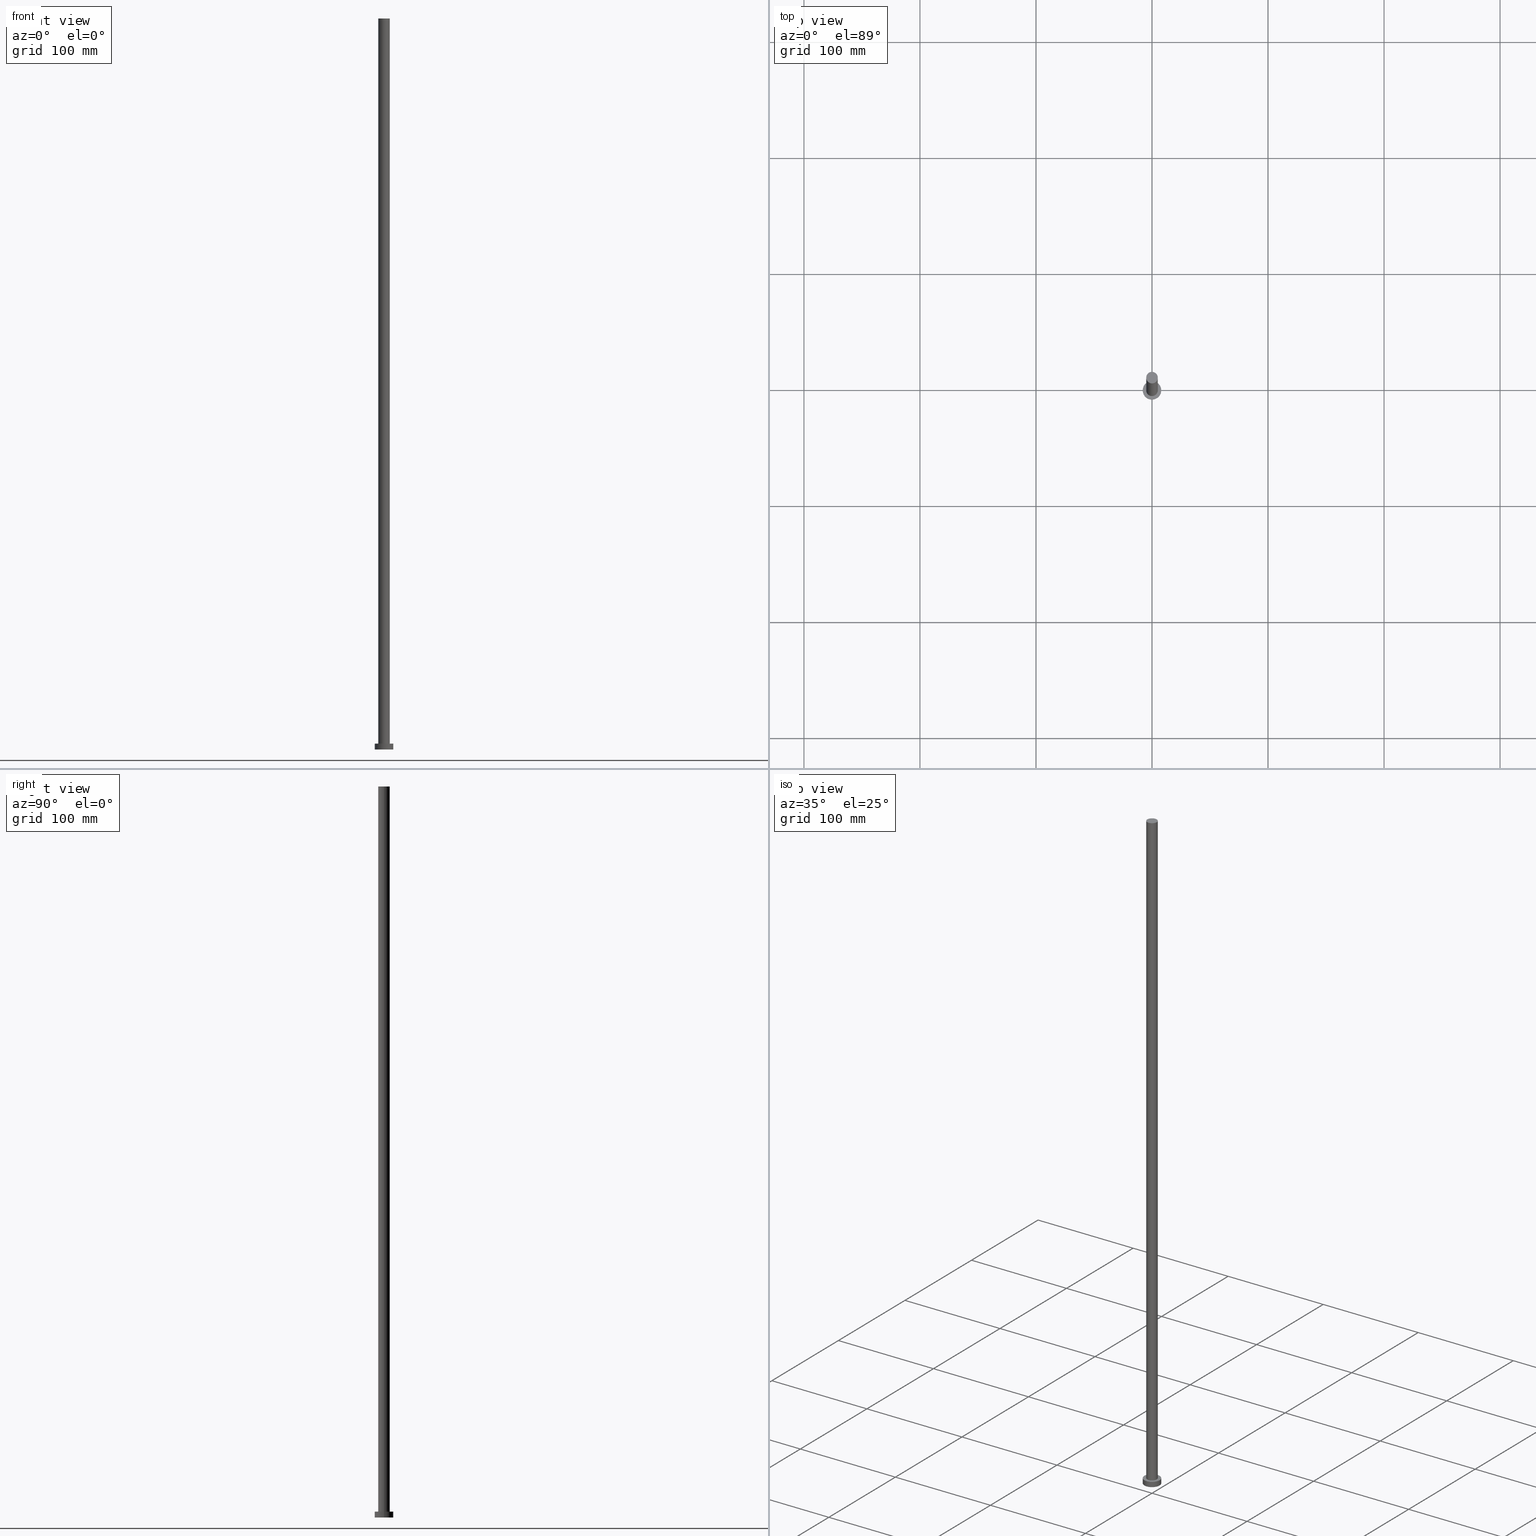
[diagram: canonical four-view strip — front | top / right | iso, engineering-drawing reading convention]
A machine part, canonical four-view strip (front | top / right | iso — engineering-drawing reading convention). The complete STEP part file that produces these views, byte-faithful:
ISO-10303-21;
HEADER;
FILE_DESCRIPTION (( 'STEP AP203' ),
    '1' );
FILE_NAME ('5aad.STEP',
    '2023-02-13T09:58:31',
    ( '' ),
    ( '' ),
    'SwSTEP 2.0',
    'SolidWorks 2019',
    '' );
FILE_SCHEMA (( 'CONFIG_CONTROL_DESIGN' ));
ENDSEC;

DATA;
#1 = DIRECTION ( 'NONE',  ( 0.000000000000000000, 0.000000000000000000, 1.000000000000000000 ) ) ;
#2 = CARTESIAN_POINT ( 'NONE',  ( 0.000000000000000000, 0.000000000000000000, 5.000000000000000000 ) ) ;
#3 = CARTESIAN_POINT ( 'NONE',  ( 8.000000000000000000, 9.797174393178825657E-16, 5.000000000000000000 ) ) ;
#4 = DATE_AND_TIME ( #189, #205 ) ;
#5 = LINE ( 'NONE', #28, #215 ) ;
#6 = APPROVAL_STATUS ( 'not_yet_approved' ) ;
#7 =( GEOMETRIC_REPRESENTATION_CONTEXT ( 3 ) GLOBAL_UNCERTAINTY_ASSIGNED_CONTEXT ( ( #76 ) ) GLOBAL_UNIT_ASSIGNED_CONTEXT ( ( #175, #83, #44 ) ) REPRESENTATION_CONTEXT ( 'NONE', 'WORKASPACE' ) );
#8 = DIRECTION ( 'NONE',  ( 1.000000000000000000, 0.000000000000000000, 0.000000000000000000 ) ) ;
#9 = DATE_AND_TIME ( #10, #72 ) ;
#10 = CALENDAR_DATE ( 2023, 13, 2 ) ;
#11 = CARTESIAN_POINT ( 'NONE',  ( 0.000000000000000000, 0.000000000000000000, 5.000000000000000000 ) ) ;
#12 = CARTESIAN_POINT ( 'NONE',  ( 0.000000000000000000, 0.000000000000000000, 5.000000000000000000 ) ) ;
#13 = CARTESIAN_POINT ( 'NONE',  ( 5.000000000000000888, 6.123233995736767268E-16, 630.0000000000000000 ) ) ;
#14 = EDGE_LOOP ( 'NONE', ( #141, #65 ) ) ;
#15 = EDGE_CURVE ( 'NONE', #218, #158, #99, .T. ) ;
#16 = LOCAL_TIME ( 10, 58, 31.00000000000000000, #43 ) ;
#17 = EDGE_LOOP ( 'NONE', ( #115, #117, #137, #52 ) ) ;
#18 = ORIENTED_EDGE ( 'NONE', *, *, #168, .F. ) ;
#19 = APPROVAL_DATE_TIME ( #145, #170 ) ;
#20 = SHAPE_DEFINITION_REPRESENTATION ( #190, #213 ) ;
#21 = PRODUCT_DEFINITION ( 'NEZN�M�', '', #249, #94 ) ;
#22 = CYLINDRICAL_SURFACE ( 'NONE', #47, 5.000000000000000888 ) ;
#23 = CLOSED_SHELL ( 'NONE', ( #30, #248, #149, #226, #93, #181, #239 ) ) ;
#24 = PERSON_AND_ORGANIZATION ( #131, #167 ) ;
#25 = CARTESIAN_POINT ( 'NONE',  ( 8.000000000000000000, 9.797174393178825657E-16, 0.000000000000000000 ) ) ;
#26 = DIRECTION ( 'NONE',  ( -0.000000000000000000, -0.000000000000000000, -1.000000000000000000 ) ) ;
#27 = APPROVAL_STATUS ( 'not_yet_approved' ) ;
#28 = CARTESIAN_POINT ( 'NONE',  ( -5.000000000000000888, 0.000000000000000000, 630.0000000000000000 ) ) ;
#29 = FACE_OUTER_BOUND ( 'NONE', #227, .T. ) ;
#30 = ADVANCED_FACE ( 'NONE', ( #122 ), #22, .T. ) ;
#31 = CARTESIAN_POINT ( 'NONE',  ( 0.000000000000000000, 0.000000000000000000, 0.000000000000000000 ) ) ;
#32 = EDGE_CURVE ( 'NONE', #200, #218, #194, .T. ) ;
#33 = CARTESIAN_POINT ( 'NONE',  ( -8.000000000000000000, 0.000000000000000000, 5.000000000000000000 ) ) ;
#34 = CC_DESIGN_SECURITY_CLASSIFICATION ( #139, ( #249 ) ) ;
#35 = ORIENTED_EDGE ( 'NONE', *, *, #69, .T. ) ;
#36 = EDGE_CURVE ( 'NONE', #200, #134, #183, .T. ) ;
#37 = MANIFOLD_SOLID_BREP ( 'P�idat vysunut�m3', #23 ) ;
#38 = CIRCLE ( 'NONE', #188, 5.000000000000000888 ) ;
#39 = AXIS2_PLACEMENT_3D ( 'NONE', #252, #71, #157 ) ;
#40 = PERSON_AND_ORGANIZATION_ROLE ( 'classification_officer' ) ;
#41 = DIRECTION ( 'NONE',  ( -1.000000000000000000, 0.000000000000000000, 0.000000000000000000 ) ) ;
#42 = DIRECTION ( 'NONE',  ( 0.000000000000000000, 0.000000000000000000, 1.000000000000000000 ) ) ;
#43 = COORDINATED_UNIVERSAL_TIME_OFFSET ( 1, 0, .AHEAD. ) ;
#44 =( NAMED_UNIT ( * ) SI_UNIT ( $, .STERADIAN. ) SOLID_ANGLE_UNIT ( ) );
#45 = DIRECTION ( 'NONE',  ( 0.000000000000000000, 0.000000000000000000, 1.000000000000000000 ) ) ;
#46 = ORIENTED_EDGE ( 'NONE', *, *, #186, .T. ) ;
#47 = AXIS2_PLACEMENT_3D ( 'NONE', #78, #142, #204 ) ;
#48 = LINE ( 'NONE', #13, #247 ) ;
#49 = AXIS2_PLACEMENT_3D ( 'NONE', #179, #45, #250 ) ;
#50 = DIRECTION ( 'NONE',  ( -0.000000000000000000, -0.000000000000000000, -1.000000000000000000 ) ) ;
#51 = APPLICATION_PROTOCOL_DEFINITION ( 'international standard', 'config_control_design', 1994, #162 ) ;
#52 = ORIENTED_EDGE ( 'NONE', *, *, #36, .F. ) ;
#53 = EDGE_CURVE ( 'NONE', #180, #182, #106, .T. ) ;
#54 = EDGE_LOOP ( 'NONE', ( #18, #232 ) ) ;
#55 = FACE_OUTER_BOUND ( 'NONE', #136, .T. ) ;
#56 = AXIS2_PLACEMENT_3D ( 'NONE', #11, #151, #198 ) ;
#57 = CARTESIAN_POINT ( 'NONE',  ( -8.000000000000000000, 0.000000000000000000, 5.000000000000000000 ) ) ;
#58 = CIRCLE ( 'NONE', #195, 8.000000000000000000 ) ;
#59 = EDGE_CURVE ( 'NONE', #218, #200, #176, .T. ) ;
#60 = CALENDAR_DATE ( 2023, 13, 2 ) ;
#61 = FACE_OUTER_BOUND ( 'NONE', #253, .T. ) ;
#62 = PERSON_AND_ORGANIZATION ( #131, #167 ) ;
#63 = CARTESIAN_POINT ( 'NONE',  ( -5.000000000000000888, 0.000000000000000000, 5.000000000000000000 ) ) ;
#64 = PERSON_AND_ORGANIZATION_ROLE ( 'creator' ) ;
#65 = ORIENTED_EDGE ( 'NONE', *, *, #53, .T. ) ;
#66 = APPROVAL ( #27, 'NEUR�EN�' ) ;
#67 = DIRECTION ( 'NONE',  ( 1.000000000000000000, 0.000000000000000000, 0.000000000000000000 ) ) ;
#68 = PERSON_AND_ORGANIZATION ( #131, #167 ) ;
#69 = EDGE_CURVE ( 'NONE', #182, #97, #5, .T. ) ;
#70 = EDGE_LOOP ( 'NONE', ( #75, #46, #216, #217 ) ) ;
#71 = DIRECTION ( 'NONE',  ( 0.000000000000000000, 0.000000000000000000, 1.000000000000000000 ) ) ;
#72 = LOCAL_TIME ( 10, 58, 31.00000000000000000, #196 ) ;
#73 = CARTESIAN_POINT ( 'NONE',  ( 8.000000000000000000, 9.797174393178825657E-16, 5.000000000000000000 ) ) ;
#74 = ORIENTED_EDGE ( 'NONE', *, *, #241, .T. ) ;
#75 = ORIENTED_EDGE ( 'NONE', *, *, #53, .F. ) ;
#76 = UNCERTAINTY_MEASURE_WITH_UNIT (LENGTH_MEASURE( 1.000000000000000082E-05 ), #175, 'distance_accuracy_value', 'NONE');
#77 = CARTESIAN_POINT ( 'NONE',  ( 0.000000000000000000, 0.000000000000000000, 0.000000000000000000 ) ) ;
#78 = CARTESIAN_POINT ( 'NONE',  ( 0.000000000000000000, 0.000000000000000000, 630.0000000000000000 ) ) ;
#79 = CC_DESIGN_APPROVAL ( #234, ( #21 ) ) ;
#80 = DATE_TIME_ROLE ( 'classification_date' ) ;
#81 = PERSON_AND_ORGANIZATION ( #131, #167 ) ;
#82 = ORIENTED_EDGE ( 'NONE', *, *, #15, .F. ) ;
#83 =( NAMED_UNIT ( * ) PLANE_ANGLE_UNIT ( ) SI_UNIT ( $, .RADIAN. ) );
#84 = VECTOR ( 'NONE', #222, 1000.000000000000000 ) ;
#85 = VERTEX_POINT ( 'NONE', #199 ) ;
#86 = ORIENTED_EDGE ( 'NONE', *, *, #32, .F. ) ;
#87 = ORIENTED_EDGE ( 'NONE', *, *, #36, .T. ) ;
#88 = FACE_OUTER_BOUND ( 'NONE', #14, .T. ) ;
#89 = ORIENTED_EDGE ( 'NONE', *, *, #241, .F. ) ;
#90 = CC_DESIGN_PERSON_AND_ORGANIZATION_ASSIGNMENT ( #92, #40, ( #139 ) ) ;
#91 = ORIENTED_EDGE ( 'NONE', *, *, #168, .T. ) ;
#92 = PERSON_AND_ORGANIZATION ( #131, #167 ) ;
#93 = ADVANCED_FACE ( 'NONE', ( #55 ), #209, .F. ) ;
#94 = DESIGN_CONTEXT ( 'detailed design', #235, 'design' ) ;
#95 = COORDINATED_UNIVERSAL_TIME_OFFSET ( 1, 0, .AHEAD. ) ;
#96 = CARTESIAN_POINT ( 'NONE',  ( 0.000000000000000000, 0.000000000000000000, 0.000000000000000000 ) ) ;
#97 = VERTEX_POINT ( 'NONE', #63 ) ;
#98 = SECURITY_CLASSIFICATION_LEVEL ( 'unclassified' ) ;
#99 = LINE ( 'NONE', #3, #84 ) ;
#100 = DIRECTION ( 'NONE',  ( 0.000000000000000000, 0.000000000000000000, 1.000000000000000000 ) ) ;
#101 = COORDINATED_UNIVERSAL_TIME_OFFSET ( 1, 0, .AHEAD. ) ;
#102 = MECHANICAL_CONTEXT ( 'NONE', #162, 'mechanical' ) ;
#103 = EDGE_LOOP ( 'NONE', ( #155, #236 ) ) ;
#104 = PRODUCT ( '5aad', '5aad', '', ( #102 ) ) ;
#105 = CARTESIAN_POINT ( 'NONE',  ( 0.000000000000000000, 0.000000000000000000, 5.000000000000000000 ) ) ;
#106 = CIRCLE ( 'NONE', #255, 5.000000000000000888 ) ;
#107 = LOCAL_TIME ( 10, 58, 31.00000000000000000, #119 ) ;
#108 = CARTESIAN_POINT ( 'NONE',  ( -8.000000000000000000, 0.000000000000000000, 0.000000000000000000 ) ) ;
#109 = DATE_TIME_ROLE ( 'creation_date' ) ;
#110 = AXIS2_PLACEMENT_3D ( 'NONE', #12, #100, #245 ) ;
#111 = DIRECTION ( 'NONE',  ( 1.000000000000000000, 0.000000000000000000, -0.000000000000000000 ) ) ;
#112 = DIRECTION ( 'NONE',  ( -0.000000000000000000, -0.000000000000000000, -1.000000000000000000 ) ) ;
#113 = ORIENTED_EDGE ( 'NONE', *, *, #243, .F. ) ;
#114 = DIRECTION ( 'NONE',  ( 0.000000000000000000, 0.000000000000000000, 1.000000000000000000 ) ) ;
#115 = ORIENTED_EDGE ( 'NONE', *, *, #59, .F. ) ;
#116 = APPROVAL_PERSON_ORGANIZATION ( #24, #234, #228 ) ;
#117 = ORIENTED_EDGE ( 'NONE', *, *, #15, .T. ) ;
#118 = CC_DESIGN_DATE_AND_TIME_ASSIGNMENT ( #212, #109, ( #21 ) ) ;
#119 = COORDINATED_UNIVERSAL_TIME_OFFSET ( 1, 0, .AHEAD. ) ;
#120 = CIRCLE ( 'NONE', #39, 5.000000000000000888 ) ;
#121 = CALENDAR_DATE ( 2023, 13, 2 ) ;
#122 = FACE_OUTER_BOUND ( 'NONE', #70, .T. ) ;
#123 = DIRECTION ( 'NONE',  ( -1.000000000000000000, 0.000000000000000000, 0.000000000000000000 ) ) ;
#124 = CIRCLE ( 'NONE', #159, 8.000000000000000000 ) ;
#125 = DIRECTION ( 'NONE',  ( 1.000000000000000000, 0.000000000000000000, 0.000000000000000000 ) ) ;
#126 = PERSON_AND_ORGANIZATION ( #131, #167 ) ;
#127 = CARTESIAN_POINT ( 'NONE',  ( 0.000000000000000000, 0.000000000000000000, 0.000000000000000000 ) ) ;
#128 = APPROVAL_DATE_TIME ( #9, #66 ) ;
#129 = AXIS2_PLACEMENT_3D ( 'NONE', #2, #185, #206 ) ;
#130 = AXIS2_PLACEMENT_3D ( 'NONE', #169, #172, #111 ) ;
#131 = PERSON ( 'NEUR�EN�', 'NEUR�EN�', 'NEUR�EN�', ('NEUR�EN�'), ('NEUR�EN�'), ('NEUR�EN�') ) ;
#132 = PERSON_AND_ORGANIZATION_ROLE ( 'design_owner' ) ;
#133 = DIRECTION ( 'NONE',  ( -1.000000000000000000, 0.000000000000000000, 0.000000000000000000 ) ) ;
#134 = VERTEX_POINT ( 'NONE', #108 ) ;
#135 = FACE_BOUND ( 'NONE', #54, .T. ) ;
#136 = EDGE_LOOP ( 'NONE', ( #89, #237 ) ) ;
#137 = ORIENTED_EDGE ( 'NONE', *, *, #143, .T. ) ;
#138 = PERSON_AND_ORGANIZATION_ROLE ( 'creator' ) ;
#139 = SECURITY_CLASSIFICATION ( '', '', #98 ) ;
#140 = VECTOR ( 'NONE', #219, 1000.000000000000000 ) ;
#141 = ORIENTED_EDGE ( 'NONE', *, *, #243, .T. ) ;
#142 = DIRECTION ( 'NONE',  ( -0.000000000000000000, -0.000000000000000000, -1.000000000000000000 ) ) ;
#143 = EDGE_CURVE ( 'NONE', #158, #134, #124, .T. ) ;
#144 = AXIS2_PLACEMENT_3D ( 'NONE', #77, #244, #166 ) ;
#145 = DATE_AND_TIME ( #60, #107 ) ;
#146 = CARTESIAN_POINT ( 'NONE',  ( 0.000000000000000000, 0.000000000000000000, 630.0000000000000000 ) ) ;
#147 = CC_DESIGN_PERSON_AND_ORGANIZATION_ASSIGNMENT ( #214, #138, ( #249 ) ) ;
#148 = CC_DESIGN_APPROVAL ( #66, ( #249 ) ) ;
#149 = ADVANCED_FACE ( 'NONE', ( #29 ), #229, .T. ) ;
#150 = DIRECTION ( 'NONE',  ( -0.000000000000000000, -0.000000000000000000, -1.000000000000000000 ) ) ;
#151 = DIRECTION ( 'NONE',  ( 0.000000000000000000, 0.000000000000000000, 1.000000000000000000 ) ) ;
#152 = APPLICATION_PROTOCOL_DEFINITION ( 'international standard', 'config_control_design', 1994, #235 ) ;
#153 = CARTESIAN_POINT ( 'NONE',  ( 0.000000000000000000, 0.000000000000000000, 5.000000000000000000 ) ) ;
#154 = DIRECTION ( 'NONE',  ( -0.000000000000000000, -0.000000000000000000, -1.000000000000000000 ) ) ;
#155 = ORIENTED_EDGE ( 'NONE', *, *, #32, .T. ) ;
#156 = FACE_OUTER_BOUND ( 'NONE', #103, .T. ) ;
#157 = DIRECTION ( 'NONE',  ( 1.000000000000000000, 0.000000000000000000, 0.000000000000000000 ) ) ;
#158 = VERTEX_POINT ( 'NONE', #25 ) ;
#159 = AXIS2_PLACEMENT_3D ( 'NONE', #127, #42, #125 ) ;
#160 = CARTESIAN_POINT ( 'NONE',  ( 0.000000000000000000, 0.000000000000000000, 630.0000000000000000 ) ) ;
#161 = DATE_AND_TIME ( #121, #171 ) ;
#162 = APPLICATION_CONTEXT ( 'configuration controlled 3d designs of mechanical parts and assemblies' ) ;
#163 = CARTESIAN_POINT ( 'NONE',  ( -5.000000000000000888, 0.000000000000000000, 630.0000000000000000 ) ) ;
#164 = APPROVAL_DATE_TIME ( #4, #234 ) ;
#165 = CYLINDRICAL_SURFACE ( 'NONE', #193, 5.000000000000000888 ) ;
#166 = DIRECTION ( 'NONE',  ( 1.000000000000000000, 0.000000000000000000, 0.000000000000000000 ) ) ;
#167 = ORGANIZATION ( 'NEUR�EN�', 'NEUR�EN�', '' ) ;
#168 = EDGE_CURVE ( 'NONE', #97, #85, #225, .T. ) ;
#169 = CARTESIAN_POINT ( 'NONE',  ( 0.000000000000000000, 0.000000000000000000, 5.000000000000000000 ) ) ;
#170 = APPROVAL ( #254, 'NEUR�EN�' ) ;
#171 = LOCAL_TIME ( 10, 58, 31.00000000000000000, #95 ) ;
#172 = DIRECTION ( 'NONE',  ( 0.000000000000000000, 0.000000000000000000, 1.000000000000000000 ) ) ;
#173 = ORIENTED_EDGE ( 'NONE', *, *, #186, .F. ) ;
#174 = FACE_OUTER_BOUND ( 'NONE', #17, .T. ) ;
#175 =( LENGTH_UNIT ( ) NAMED_UNIT ( * ) SI_UNIT ( .MILLI., .METRE. ) );
#176 = CIRCLE ( 'NONE', #56, 8.000000000000000000 ) ;
#177 = CC_DESIGN_PERSON_AND_ORGANIZATION_ASSIGNMENT ( #81, #64, ( #21 ) ) ;
#178 = APPROVAL_PERSON_ORGANIZATION ( #62, #66, #192 ) ;
#179 = CARTESIAN_POINT ( 'NONE',  ( 0.000000000000000000, 0.000000000000000000, 630.0000000000000000 ) ) ;
#180 = VERTEX_POINT ( 'NONE', #211 ) ;
#181 = ADVANCED_FACE ( 'NONE', ( #61 ), #165, .T. ) ;
#182 = VERTEX_POINT ( 'NONE', #163 ) ;
#183 = LINE ( 'NONE', #57, #140 ) ;
#184 = EDGE_CURVE ( 'NONE', #85, #97, #38, .T. ) ;
#185 = DIRECTION ( 'NONE',  ( 0.000000000000000000, 0.000000000000000000, 1.000000000000000000 ) ) ;
#186 = EDGE_CURVE ( 'NONE', #180, #85, #48, .T. ) ;
#187 = CC_DESIGN_DATE_AND_TIME_ASSIGNMENT ( #161, #80, ( #139 ) ) ;
#188 = AXIS2_PLACEMENT_3D ( 'NONE', #105, #191, #8 ) ;
#189 = CALENDAR_DATE ( 2023, 13, 2 ) ;
#190 = PRODUCT_DEFINITION_SHAPE ( 'NONE', 'NONE',  #21 ) ;
#191 = DIRECTION ( 'NONE',  ( 0.000000000000000000, 0.000000000000000000, 1.000000000000000000 ) ) ;
#192 = APPROVAL_ROLE ( '' ) ;
#193 = AXIS2_PLACEMENT_3D ( 'NONE', #146, #26, #123 ) ;
#194 = CIRCLE ( 'NONE', #129, 8.000000000000000000 ) ;
#195 = AXIS2_PLACEMENT_3D ( 'NONE', #31, #114, #67 ) ;
#196 = COORDINATED_UNIVERSAL_TIME_OFFSET ( 1, 0, .AHEAD. ) ;
#197 = CARTESIAN_POINT ( 'NONE',  ( 0.000000000000000000, 0.000000000000000000, 5.000000000000000000 ) ) ;
#198 = DIRECTION ( 'NONE',  ( 1.000000000000000000, 0.000000000000000000, 0.000000000000000000 ) ) ;
#199 = CARTESIAN_POINT ( 'NONE',  ( 5.000000000000000888, 6.123233995736767268E-16, 5.000000000000000000 ) ) ;
#200 = VERTEX_POINT ( 'NONE', #33 ) ;
#201 = AXIS2_PLACEMENT_3D ( 'NONE', #153, #112, #133 ) ;
#202 = PLANE ( 'NONE',  #130 ) ;
#203 = PRODUCT_RELATED_PRODUCT_CATEGORY ( 'detail', '', ( #104 ) ) ;
#204 = DIRECTION ( 'NONE',  ( -1.000000000000000000, 0.000000000000000000, 0.000000000000000000 ) ) ;
#205 = LOCAL_TIME ( 10, 58, 31.00000000000000000, #101 ) ;
#206 = DIRECTION ( 'NONE',  ( 1.000000000000000000, 0.000000000000000000, 0.000000000000000000 ) ) ;
#207 = PERSON_AND_ORGANIZATION ( #131, #167 ) ;
#208 = DIRECTION ( 'NONE',  ( 1.000000000000000000, 0.000000000000000000, 0.000000000000000000 ) ) ;
#209 = PLANE ( 'NONE',  #238 ) ;
#210 = CC_DESIGN_PERSON_AND_ORGANIZATION_ASSIGNMENT ( #126, #132, ( #104 ) ) ;
#211 = CARTESIAN_POINT ( 'NONE',  ( 5.000000000000000888, 6.123233995736767268E-16, 630.0000000000000000 ) ) ;
#212 = DATE_AND_TIME ( #246, #16 ) ;
#213 = ADVANCED_BREP_SHAPE_REPRESENTATION ( '5aad', ( #37, #144 ), #7 ) ;
#214 = PERSON_AND_ORGANIZATION ( #131, #167 ) ;
#215 = VECTOR ( 'NONE', #50, 1000.000000000000000 ) ;
#216 = ORIENTED_EDGE ( 'NONE', *, *, #184, .T. ) ;
#217 = ORIENTED_EDGE ( 'NONE', *, *, #69, .F. ) ;
#218 = VERTEX_POINT ( 'NONE', #73 ) ;
#219 = DIRECTION ( 'NONE',  ( -0.000000000000000000, -0.000000000000000000, -1.000000000000000000 ) ) ;
#220 = DIRECTION ( 'NONE',  ( 1.000000000000000000, 0.000000000000000000, -0.000000000000000000 ) ) ;
#221 = APPROVAL_PERSON_ORGANIZATION ( #207, #170, #242 ) ;
#222 = DIRECTION ( 'NONE',  ( -0.000000000000000000, -0.000000000000000000, -1.000000000000000000 ) ) ;
#223 = AXIS2_PLACEMENT_3D ( 'NONE', #197, #150, #41 ) ;
#224 = CC_DESIGN_APPROVAL ( #170, ( #139 ) ) ;
#225 = CIRCLE ( 'NONE', #110, 5.000000000000000888 ) ;
#226 = ADVANCED_FACE ( 'NONE', ( #135, #156 ), #202, .T. ) ;
#227 = EDGE_LOOP ( 'NONE', ( #82, #86, #87, #74 ) ) ;
#228 = APPROVAL_ROLE ( '' ) ;
#229 = CYLINDRICAL_SURFACE ( 'NONE', #223, 8.000000000000000000 ) ;
#230 = CC_DESIGN_PERSON_AND_ORGANIZATION_ASSIGNMENT ( #68, #251, ( #249 ) ) ;
#231 = PLANE ( 'NONE',  #49 ) ;
#232 = ORIENTED_EDGE ( 'NONE', *, *, #184, .F. ) ;
#233 = CYLINDRICAL_SURFACE ( 'NONE', #201, 8.000000000000000000 ) ;
#234 = APPROVAL ( #6, 'NEUR�EN�' ) ;
#235 = APPLICATION_CONTEXT ( 'configuration controlled 3d designs of mechanical parts and assemblies' ) ;
#236 = ORIENTED_EDGE ( 'NONE', *, *, #59, .T. ) ;
#237 = ORIENTED_EDGE ( 'NONE', *, *, #143, .F. ) ;
#238 = AXIS2_PLACEMENT_3D ( 'NONE', #96, #1, #220 ) ;
#239 = ADVANCED_FACE ( 'NONE', ( #88 ), #231, .T. ) ;
#240 = DIRECTION ( 'NONE',  ( 0.000000000000000000, 0.000000000000000000, 1.000000000000000000 ) ) ;
#241 = EDGE_CURVE ( 'NONE', #134, #158, #58, .T. ) ;
#242 = APPROVAL_ROLE ( '' ) ;
#243 = EDGE_CURVE ( 'NONE', #182, #180, #120, .T. ) ;
#244 = DIRECTION ( 'NONE',  ( 0.000000000000000000, 0.000000000000000000, 1.000000000000000000 ) ) ;
#245 = DIRECTION ( 'NONE',  ( 1.000000000000000000, 0.000000000000000000, 0.000000000000000000 ) ) ;
#246 = CALENDAR_DATE ( 2023, 13, 2 ) ;
#247 = VECTOR ( 'NONE', #154, 1000.000000000000000 ) ;
#248 = ADVANCED_FACE ( 'NONE', ( #174 ), #233, .T. ) ;
#249 = PRODUCT_DEFINITION_FORMATION_WITH_SPECIFIED_SOURCE ( 'LIBOVOLN�', '', #104, .NOT_KNOWN. ) ;
#250 = DIRECTION ( 'NONE',  ( 1.000000000000000000, 0.000000000000000000, -0.000000000000000000 ) ) ;
#251 = PERSON_AND_ORGANIZATION_ROLE ( 'design_supplier' ) ;
#252 = CARTESIAN_POINT ( 'NONE',  ( 0.000000000000000000, 0.000000000000000000, 630.0000000000000000 ) ) ;
#253 = EDGE_LOOP ( 'NONE', ( #173, #113, #35, #91 ) ) ;
#254 = APPROVAL_STATUS ( 'not_yet_approved' ) ;
#255 = AXIS2_PLACEMENT_3D ( 'NONE', #160, #240, #208 ) ;
ENDSEC;
END-ISO-10303-21;
